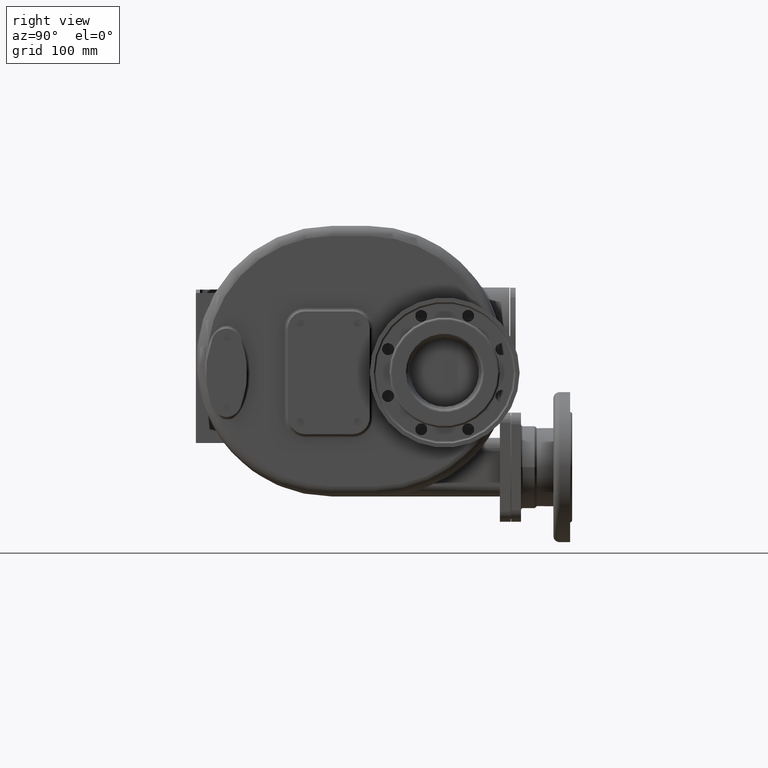
[diagram: clean part render]
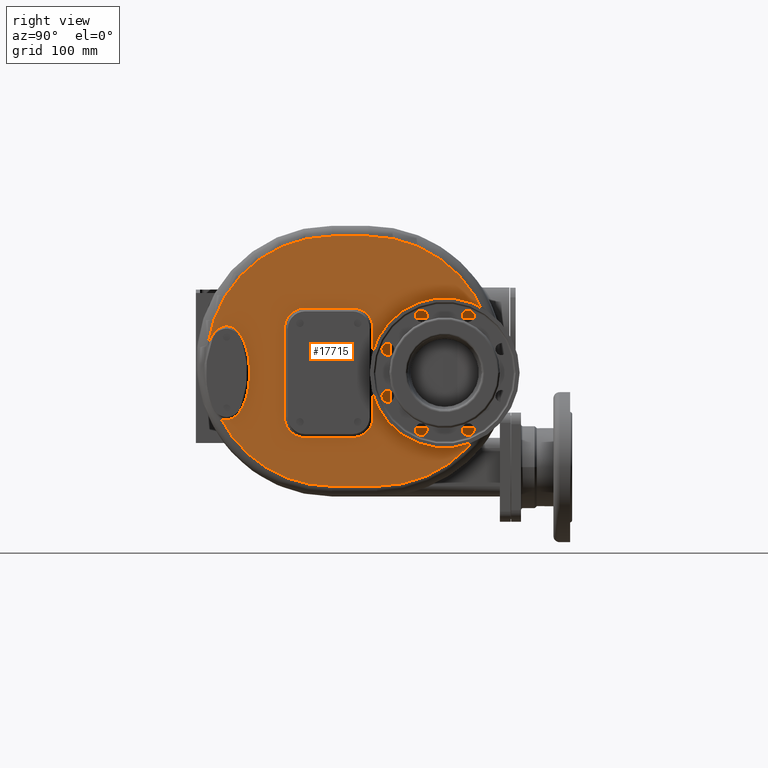
[diagram: same view with one face highlighted and labeled with its STEP entity id]
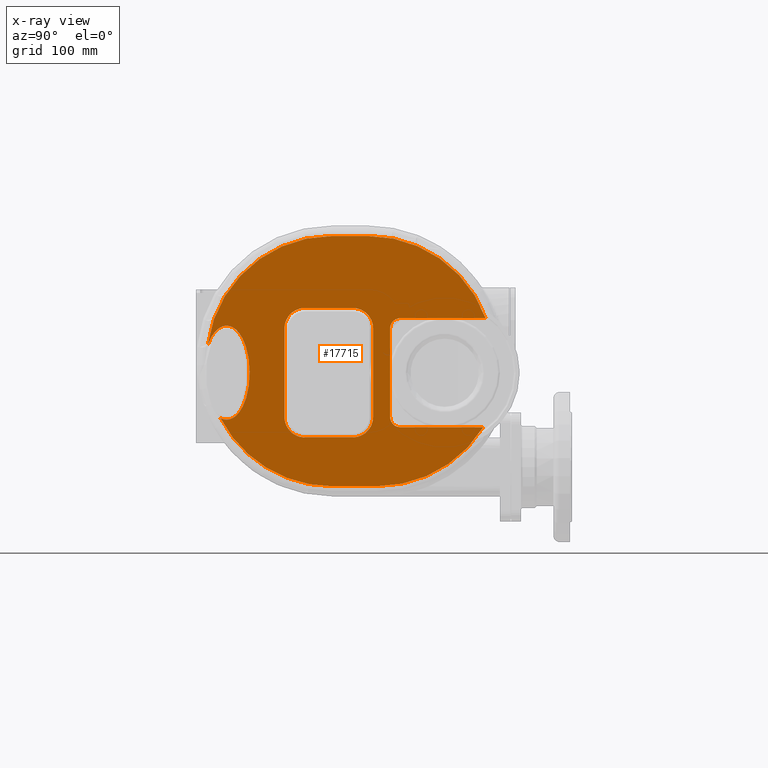
[diagram: x-ray of the same camera — body ghosted, the highlighted face saturated]
A machine part, right view. The second image highlights one B-rep face of the part: STEP entity #17715.
The next image is the same camera in x-ray: the body ghosted, the highlighted face saturated — about 0% of this face is hidden behind the body in this view.
In plain terms, the highlighted planar face has unit normal (-1, 0, 0).
Its self-contained STEP definition (entity closure, byte-faithful):
#3125=DIRECTION('',(0.E0,1.E0,0.E0));
#3126=VECTOR('',#3125,1.216074309109E2);
#3127=CARTESIAN_POINT('',(1.85E2,3.E2,-9.7E1));
#3128=LINE('',#3127,#3126);
#3169=CARTESIAN_POINT('',(1.85E2,3.E2,-8.2E1));
#3170=DIRECTION('',(-1.E0,0.E0,0.E0));
#3171=DIRECTION('',(0.E0,0.E0,-1.E0));
#3172=AXIS2_PLACEMENT_3D('',#3169,#3170,#3171);
#3174=CARTESIAN_POINT('',(1.850000005377E2,3.625590009268E1,-8.380700360577E1));
#3175=CARTESIAN_POINT('',(1.850000010474E2,3.644233185227E1,-8.390271979171E1));
#3176=CARTESIAN_POINT('',(1.849999995139E2,3.681483443033E1,-8.408726570567E1));
#3177=CARTESIAN_POINT('',(1.850000001302E2,3.737236600912E1,-8.434382731485E1));
#3178=CARTESIAN_POINT('',(1.849999999651E2,3.792832459514E1,-8.458042790233E1));
#3179=CARTESIAN_POINT('',(1.850000000094E2,3.848249259829E1,-8.479738974309E1));
#3180=CARTESIAN_POINT('',(1.849999999974E2,3.903461455280E1,-8.499507185047E1));
#3181=CARTESIAN_POINT('',(1.850000000009E2,3.958443812879E1,-8.517385338332E1));
#3182=CARTESIAN_POINT('',(1.849999999989E2,4.013180420925E1,-8.533409415977E1));
#3183=CARTESIAN_POINT('',(1.850000000034E2,4.067731638974E1,-8.547632499711E1));
#3184=CARTESIAN_POINT('',(1.849999999877E2,4.122150457814E1,-8.560105536925E1));
#3185=CARTESIAN_POINT('',(1.850000000460E2,4.176510983590E1,-8.570868341523E1));
#3186=CARTESIAN_POINT('',(1.849999998283E2,4.230805306893E1,-8.579930381958E1));
#3187=CARTESIAN_POINT('',(1.850000006406E2,4.284993283136E1,-8.587303444513E1));
#3188=CARTESIAN_POINT('',(1.849999976092E2,4.339042353394E1,-8.593007338048E1));
#3189=CARTESIAN_POINT('',(1.850000089227E2,4.392919762085E1,-8.597058278401E1));
#3190=CARTESIAN_POINT('',(1.849999666999E2,4.446599704520E1,-8.599466012178E1));
#3191=CARTESIAN_POINT('',(1.850000717517E2,4.482225118187E1,-8.599999905024E1));
#3192=CARTESIAN_POINT('',(1.850000711929E2,4.499999992839E1,-8.599999999620E1));
#3194=CARTESIAN_POINT('',(1.850000711929E2,4.499999992839E1,-8.599999999620E1));
#3195=CARTESIAN_POINT('',(1.850001252122E2,4.518950684331E1,-8.599989870260E1));
#3196=CARTESIAN_POINT('',(1.849999418888E2,4.556946980294E1,-8.599322555239E1));
#3197=CARTESIAN_POINT('',(1.850000155708E2,4.614285532402E1,-8.596554469983E1));
#3198=CARTESIAN_POINT('',(1.849999958278E2,4.671790287241E1,-8.591921490160E1));
#3199=CARTESIAN_POINT('',(1.850000011179E2,4.729342825618E1,-8.585447501856E1));
#3200=CARTESIAN_POINT('',(1.849999997004E2,4.786819630356E1,-8.577130638975E1));
#3201=CARTESIAN_POINT('',(1.850000000803E2,4.844056075272E1,-8.566993653368E1));
#3202=CARTESIAN_POINT('',(1.849999999785E2,4.901154720405E1,-8.555009547117E1));
#3203=CARTESIAN_POINT('',(1.850000000058E2,4.958341881687E1,-8.541092378018E1));
#3204=CARTESIAN_POINT('',(1.849999999985E2,5.015822642245E1,-8.525168364917E1));
#3205=CARTESIAN_POINT('',(1.850000000004E2,5.073614453723E1,-8.507193670991E1));
#3206=CARTESIAN_POINT('',(1.849999999999E2,5.131729604752E1,-8.487119471345E1));
#3207=CARTESIAN_POINT('',(1.85E2,5.190171732239E1,-8.464891730547E1));
#3208=CARTESIAN_POINT('',(1.85E2,5.248934587449E1,-8.440452518904E1));
#3209=CARTESIAN_POINT('',(1.85E2,5.307995156450E1,-8.413744288156E1));
#3210=CARTESIAN_POINT('',(1.85E2,5.367325762158E1,-8.384703677398E1));
#3211=CARTESIAN_POINT('',(1.85E2,5.426876653845E1,-8.353276263190E1));
#3212=CARTESIAN_POINT('',(1.85E2,5.486700629484E1,-8.319367839178E1));
#3213=CARTESIAN_POINT('',(1.85E2,5.546920099925E1,-8.282824995882E1));
#3214=CARTESIAN_POINT('',(1.85E2,5.607631298691E1,-8.243486265218E1));
#3215=CARTESIAN_POINT('',(1.85E2,5.668876844080E1,-8.201204680469E1));
#3216=CARTESIAN_POINT('',(1.85E2,5.730606315073E1,-8.155888062092E1));
#3217=CARTESIAN_POINT('',(1.85E2,5.792760292688E1,-8.107452987500E1));
#3218=CARTESIAN_POINT('',(1.85E2,5.855335905495E1,-8.055758564383E1));
#3219=CARTESIAN_POINT('',(1.85E2,5.918397150765E1,-8.000596171991E1));
#3220=CARTESIAN_POINT('',(1.85E2,5.981972614713E1,-7.941770282844E1));
#3221=CARTESIAN_POINT('',(1.85E2,6.046065919755E1,-7.879100216395E1));
#3222=CARTESIAN_POINT('',(1.85E2,6.110666118275E1,-7.812406059830E1));
#3223=CARTESIAN_POINT('',(1.85E2,6.175767607498E1,-7.741461600119E1));
#3224=CARTESIAN_POINT('',(1.85E2,6.241353893448E1,-7.666046138290E1));
#3225=CARTESIAN_POINT('',(1.85E2,6.307392394965E1,-7.585961432962E1));
#3226=CARTESIAN_POINT('',(1.85E2,6.373847933698E1,-7.500974785608E1));
#3227=CARTESIAN_POINT('',(1.85E2,6.440694003495E1,-7.410809943113E1));
#3228=CARTESIAN_POINT('',(1.85E2,6.507891382813E1,-7.315217800947E1));
#3229=CARTESIAN_POINT('',(1.85E2,6.575381821424E1,-7.213940442307E1));
#3230=CARTESIAN_POINT('',(1.85E2,6.643084945217E1,-7.106700698512E1));
#3231=CARTESIAN_POINT('',(1.85E2,6.710919631253E1,-6.993251973891E1));
#3232=CARTESIAN_POINT('',(1.85E2,6.778781744856E1,-6.873333426582E1));
#3233=CARTESIAN_POINT('',(1.85E2,6.846552408881E1,-6.746676728806E1));
#3234=CARTESIAN_POINT('',(1.85E2,6.914112449358E1,-6.613040379644E1));
#3235=CARTESIAN_POINT('',(1.85E2,6.981299159798E1,-6.472181303130E1));
#3236=CARTESIAN_POINT('',(1.85E2,7.047960206289E1,-6.323881832511E1));
#3237=CARTESIAN_POINT('',(1.85E2,7.113901559639E1,-6.167942909323E1));
#3238=CARTESIAN_POINT('',(1.85E2,7.178934349214E1,-6.004185513991E1));
#3239=CARTESIAN_POINT('',(1.85E2,7.242830233693E1,-5.832477658584E1));
#3240=CARTESIAN_POINT('',(1.85E2,7.305364066987E1,-5.652714015464E1));
#3241=CARTESIAN_POINT('',(1.85E2,7.366275183164E1,-5.464849392524E1));
#3242=CARTESIAN_POINT('',(1.85E2,7.425312341134E1,-5.268866940943E1));
#3243=CARTESIAN_POINT('',(1.85E2,7.482187926457E1,-5.064830980052E1));
#3244=CARTESIAN_POINT('',(1.85E2,7.536633102629E1,-4.852833233359E1));
#3245=CARTESIAN_POINT('',(1.85E2,7.588342740316E1,-4.633073034330E1));
#3246=CARTESIAN_POINT('',(1.85E2,7.637040060691E1,-4.405772228374E1));
#3247=CARTESIAN_POINT('',(1.85E2,7.682419360171E1,-4.171279891077E1));
#3248=CARTESIAN_POINT('',(1.85E2,7.724207719205E1,-3.929961601283E1));
#3249=CARTESIAN_POINT('',(1.85E2,7.762121705471E1,-3.682316573896E1));
#3250=CARTESIAN_POINT('',(1.85E2,7.795902742657E1,-3.428871071122E1));
#3251=CARTESIAN_POINT('',(1.85E2,7.825316915739E1,-3.170247622063E1));
#3252=CARTESIAN_POINT('',(1.85E2,7.850134511008E1,-2.907135330018E1));
#3253=CARTESIAN_POINT('',(1.85E2,7.870187448035E1,-2.640248987455E1));
#3254=CARTESIAN_POINT('',(1.85E2,7.885304046993E1,-2.370409072312E1));
#3255=CARTESIAN_POINT('',(1.85E2,7.895375342613E1,-2.098425461856E1));
#3256=CARTESIAN_POINT('',(1.85E2,7.900324092879E1,-1.825168290558E1));
#3257=CARTESIAN_POINT('',(1.85E2,7.900098781827E1,-1.551523666799E1));
#3258=CARTESIAN_POINT('',(1.85E2,7.894719500861E1,-1.278374435512E1));
#3259=CARTESIAN_POINT('',(1.85E2,7.884216264602E1,-1.006591450731E1));
#3260=CARTESIAN_POINT('',(1.85E2,7.868676166932E1,-7.370535469734E0));
#3261=CARTESIAN_POINT('',(1.85E2,7.848232314442E1,-4.705716672129E0));
#3262=CARTESIAN_POINT('',(1.85E2,7.823023659222E1,-2.079207344545E0));
#3263=CARTESIAN_POINT('',(1.85E2,7.793259805944E1,5.013647148972E-1));
#3264=CARTESIAN_POINT('',(1.85E2,7.759147194115E1,3.029710909365E0));
#3265=CARTESIAN_POINT('',(1.85E2,7.720928791931E1,5.499405603073E0));
#3266=CARTESIAN_POINT('',(1.85E2,7.678876281844E1,7.905282605819E0));
#3267=CARTESIAN_POINT('',(1.85E2,7.633249191919E1,1.024269332079E1));
#3268=CARTESIAN_POINT('',(1.85E2,7.584353498817E1,1.250762699480E1));
#3269=CARTESIAN_POINT('',(1.85E2,7.532460537244E1,1.469717380367E1));
#3270=CARTESIAN_POINT('',(1.85E2,7.477880358759E1,1.680869239518E1));
#3271=CARTESIAN_POINT('',(1.85E2,7.420886448877E1,1.884072404745E1));
#3272=CARTESIAN_POINT('',(1.85E2,7.361774827512E1,2.079201015275E1));
#3273=CARTESIAN_POINT('',(1.85E2,7.300807439108E1,2.266228769933E1));
#3274=CARTESIAN_POINT('',(1.85E2,7.238256612715E1,2.445151260150E1));
#3275=CARTESIAN_POINT('',(1.85E2,7.174360569278E1,2.616041002525E1));
#3276=CARTESIAN_POINT('',(1.85E2,7.109361378832E1,2.778992212320E1));
#3277=CARTESIAN_POINT('',(1.85E2,7.043467186250E1,2.934152890162E1));
#3278=CARTESIAN_POINT('',(1.85E2,6.976885832766E1,3.081689665170E1));
#3279=CARTESIAN_POINT('',(1.85E2,6.909792427296E1,3.221809702129E1));
#3280=CARTESIAN_POINT('',(1.85E2,6.842354274433E1,3.354729396418E1));
#3281=CARTESIAN_POINT('',(1.85E2,6.774721054479E1,3.480693316483E1));
#3282=CARTESIAN_POINT('',(1.85E2,6.707015733650E1,3.599941680132E1));
#3283=CARTESIAN_POINT('',(1.85E2,6.639364343639E1,3.712746266736E1));
#3284=CARTESIAN_POINT('',(1.85E2,6.571853002673E1,3.819364170201E1));
#3285=CARTESIAN_POINT('',(1.85E2,6.504561792590E1,3.920068128407E1));
#3286=CARTESIAN_POINT('',(1.85E2,6.437568578852E1,4.015133665570E1));
#3287=CARTESIAN_POINT('',(1.85E2,6.370916111379E1,4.104814521698E1));
#3288=CARTESIAN_POINT('',(1.85E2,6.304638184767E1,4.189380253273E1));
#3289=CARTESIAN_POINT('',(1.85E2,6.238783783456E1,4.269077678348E1));
#3290=CARTESIAN_POINT('',(1.85E2,6.173375724101E1,4.344131690342E1));
#3291=CARTESIAN_POINT('',(1.85E2,6.108421512661E1,4.414777606723E1));
#3292=CARTESIAN_POINT('',(1.85E2,6.043944642871E1,4.481230613829E1));
#3293=CARTESIAN_POINT('',(1.85E2,5.979954639988E1,4.543685539750E1));
#3294=CARTESIAN_POINT('',(1.85E2,5.916442836045E1,4.602341481491E1));
#3295=CARTESIAN_POINT('',(1.85E2,5.853413008023E1,4.657381022052E1));
#3296=CARTESIAN_POINT('',(1.85E2,5.790862846089E1,4.708970054215E1));
#3297=CARTESIAN_POINT('',(1.85E2,5.728772460407E1,4.757274691636E1));
#3298=CARTESIAN_POINT('',(1.85E2,5.667133613891E1,4.802443759764E1));
#3299=CARTESIAN_POINT('',(1.85E2,5.605936994374E1,4.844613912642E1));
#3300=CARTESIAN_POINT('',(1.85E2,5.545158233253E1,4.883919578085E1));
#3301=CARTESIAN_POINT('',(1.85E2,5.484785081526E1,4.920476920419E1));
#3302=CARTESIAN_POINT('',(1.85E2,5.424805552540E1,4.954395436310E1));
#3303=CARTESIAN_POINT('',(1.85E2,5.365196738629E1,4.985780495307E1));
#3304=CARTESIAN_POINT('',(1.85E2,5.305931618534E1,5.014728002577E1));
#3305=CARTESIAN_POINT('',(1.85E2,5.246979983289E1,5.041331324403E1));
#3306=CARTESIAN_POINT('',(1.85E2,5.188309189676E1,5.065672244706E1));
#3307=CARTESIAN_POINT('',(1.849999999999E2,5.129915568915E1,5.087809952217E1));
#3308=CARTESIAN_POINT('',(1.850000000002E2,5.071795471106E1,5.107808157176E1));
#3309=CARTESIAN_POINT('',(1.849999999991E2,5.013934085642E1,5.125725583326E1));
#3310=CARTESIAN_POINT('',(1.850000000033E2,4.956272474974E1,5.141620161068E1));
#3311=CARTESIAN_POINT('',(1.849999999875E2,4.898758472486E1,5.155547560170E1));
#3312=CARTESIAN_POINT('',(1.850000000466E2,4.841323091236E1,5.167556339485E1));
#3313=CARTESIAN_POINT('',(1.849999998262E2,4.783983670476E1,5.177660684976E1));
#3314=CARTESIAN_POINT('',(1.850000006485E2,4.726778398452E1,5.185873901405E1));
#3315=CARTESIAN_POINT('',(1.849999975798E2,4.669741570136E1,5.192222837044E1));
#3316=CARTESIAN_POINT('',(1.850000090325E2,4.612906037439E1,5.196729468082E1));
#3317=CARTESIAN_POINT('',(1.849999662903E2,4.556296935055E1,5.199407075726E1));
#3318=CARTESIAN_POINT('',(1.850000726344E2,4.518737295131E1,5.199999891831E1));
#3319=CARTESIAN_POINT('',(1.850000719978E2,4.500000007358E1,5.199999999610E1));
#3321=CARTESIAN_POINT('',(1.850000719978E2,4.500000007358E1,5.199999999610E1));
#3322=CARTESIAN_POINT('',(1.850001267406E2,4.481104877648E1,5.199989710667E1));
#3323=CARTESIAN_POINT('',(1.849999411795E2,4.443209167657E1,5.199324911120E1));
#3324=CARTESIAN_POINT('',(1.850000157609E2,4.385983143286E1,5.196568575622E1));
#3325=CARTESIAN_POINT('',(1.849999957769E2,4.328572785387E1,5.191952317161E1));
#3326=CARTESIAN_POINT('',(1.850000011316E2,4.271109534493E1,5.185500713247E1));
#3327=CARTESIAN_POINT('',(1.849999996968E2,4.213731854506E1,5.177213984082E1));
#3328=CARTESIAN_POINT('',(1.850000000812E2,4.156618035811E1,5.167119011036E1));
#3329=CARTESIAN_POINT('',(1.849999999782E2,4.099647119165E1,5.155188139042E1));
#3330=CARTESIAN_POINT('',(1.850000000058E2,4.042593302348E1,5.141334805671E1));
#3331=CARTESIAN_POINT('',(1.849999999984E2,3.985262508561E1,5.125487010647E1));
#3332=CARTESIAN_POINT('',(1.850000000004E2,3.927632647611E1,5.107602296878E1));
#3333=CARTESIAN_POINT('',(1.849999999999E2,3.869678735023E1,5.087628877304E1));
#3334=CARTESIAN_POINT('',(1.85E2,3.811385592961E1,5.065508802725E1));
#3335=CARTESIAN_POINT('',(1.85E2,3.752754232303E1,5.041181312395E1));
#3336=CARTESIAN_POINT('',(1.85E2,3.693820782815E1,5.014593994828E1));
#3337=CARTESIAN_POINT('',(1.85E2,3.634620210372E1,4.985688601010E1));
#3338=CARTESIAN_POINT('',(1.85E2,3.575217335100E1,4.954418577109E1));
#3339=CARTESIAN_POINT('',(1.85E2,3.515538192979E1,4.920678767335E1));
#3340=CARTESIAN_POINT('',(1.85E2,3.455459162316E1,4.884315301035E1));
#3341=CARTESIAN_POINT('',(1.85E2,3.394876887882E1,4.845161880231E1));
#3342=CARTESIAN_POINT('',(1.85E2,3.333765505204E1,4.803082767401E1));
#3343=CARTESIAN_POINT('',(1.85E2,3.272176433756E1,4.757988051193E1));
#3344=CARTESIAN_POINT('',(1.85E2,3.210171542287E1,4.709799173881E1));
#3345=CARTESIAN_POINT('',(1.85E2,3.147741630684E1,4.658368658378E1));
#3346=CARTESIAN_POINT('',(1.85E2,3.084834757465E1,4.603497749444E1));
#3347=CARTESIAN_POINT('',(1.85E2,3.021427767288E1,4.544998579026E1));
#3348=CARTESIAN_POINT('',(1.85E2,2.957503325135E1,4.482678086557E1));
#3349=CARTESIAN_POINT('',(1.85E2,2.893059157455E1,4.416347971534E1));
#3350=CARTESIAN_POINT('',(1.85E2,2.828109530975E1,4.345792199950E1));
#3351=CARTESIAN_POINT('',(1.85E2,2.76268049E1,4.270800238143E1));
#3352=CARTESIAN_POINT('',(1.85E2,2.696814925223E1,4.191186811357E1));
#3353=CARTESIAN_POINT('',(1.85E2,2.630540192496E1,4.106723291169E1));
#3354=CARTESIAN_POINT('',(1.85E2,2.563881894602E1,4.017133731290E1));
#3355=CARTESIAN_POINT('',(1.849999999998E2,2.496879187446E1,3.922167441618E1));
#3356=CARTESIAN_POINT('',(1.850000000006E2,2.429586468350E1,3.821577892319E1));
#3357=CARTESIAN_POINT('',(1.849999999978E2,2.362088801954E1,3.715098452631E1));
#3358=CARTESIAN_POINT('',(1.850000000083E2,2.294474268941E1,3.602493122796E1));
#3359=CARTESIAN_POINT('',(1.849999999692E2,2.226832437395E1,3.483503023584E1));
#3360=CARTESIAN_POINT('',(1.850000001151E2,2.159273995515E1,3.357841062375E1));
#3361=CARTESIAN_POINT('',(1.849999995706E2,2.091912409746E1,3.225263469886E1));
#3362=CARTESIAN_POINT('',(1.850000016025E2,2.024922447930E1,3.085567739919E1));
#3363=CARTESIAN_POINT('',(1.849999940194E2,1.958472336326E1,2.938571740279E1));
#3364=CARTESIAN_POINT('',(1.850000223200E2,1.892733010295E1,2.784062397819E1));
#3365=CARTESIAN_POINT('',(1.849999167007E2,1.827888125732E1,2.621846207342E1));
#3366=CARTESIAN_POINT('',(1.850001794850E2,1.785375017846E1,2.508413205959E1));
#3367=CARTESIAN_POINT('',(1.850001806549E2,1.764340803706E1,2.450367455748E1));
#3369=CARTESIAN_POINT('',(1.85E2,1.995E2,0.E0));
#3370=DIRECTION('',(1.E0,0.E0,0.E0));
#3371=DIRECTION('',(0.E0,0.E0,1.E0));
#3372=AXIS2_PLACEMENT_3D('',#3369,#3370,#3371);
#3374=DIRECTION('',(0.E0,-1.E0,0.E0));
#3375=VECTOR('',#3374,5.338915899923E1);
#3376=CARTESIAN_POINT('',(1.85E2,2.528891589992E2,1.835E2));
#3377=LINE('',#3376,#3375);
#3378=CARTESIAN_POINT('',(1.85E2,2.528891589992E2,0.E0));
#3379=DIRECTION('',(1.E0,0.E0,0.E0));
#3380=DIRECTION('',(0.E0,9.392169392074E-1,3.433242506812E-1));
#3381=AXIS2_PLACEMENT_3D('',#3378,#3379,#3380);
#3383=CARTESIAN_POINT('',(1.85E2,2.658407785106E2,0.E0));
#3384=DIRECTION('',(1.E0,0.E0,0.E0));
#3385=DIRECTION('',(0.E0,0.E0,-1.E0));
#3386=AXIS2_PLACEMENT_3D('',#3383,#3384,#3385);
#3388=DIRECTION('',(0.E0,1.E0,0.E0));
#3389=VECTOR('',#3388,6.634077851062E1);
#3390=CARTESIAN_POINT('',(1.85E2,1.995E2,-1.835E2));
#3391=LINE('',#3390,#3389);
#3392=CARTESIAN_POINT('',(1.85E2,1.995E2,0.E0));
#3393=DIRECTION('',(1.E0,0.E0,0.E0));
#3394=DIRECTION('',(0.E0,-8.896136235749E-1,-4.567139156517E-1));
#3395=AXIS2_PLACEMENT_3D('',#3392,#3393,#3394);
#3397=DIRECTION('',(0.E0,4.788839410549E-12,1.E0));
#3398=VECTOR('',#3397,1.299999999984E2);
#3399=CARTESIAN_POINT('',(1.85E2,2.599999999989E2,-8.199999999904E1));
#3400=LINE('',#3399,#3398);
#3401=CARTESIAN_POINT('',(1.85E2,2.3E2,4.8E1));
#3402=DIRECTION('',(1.E0,0.E0,0.E0));
#3403=DIRECTION('',(0.E0,1.E0,0.E0));
#3404=AXIS2_PLACEMENT_3D('',#3401,#3402,#3403);
#3406=DIRECTION('',(0.E0,-1.E0,8.894167942032E-12));
#3407=VECTOR('',#3406,6.999999999837E1);
#3408=CARTESIAN_POINT('',(1.85E2,2.299999999990E2,7.799999999892E1));
#3409=LINE('',#3408,#3407);
#3410=CARTESIAN_POINT('',(1.85E2,1.6E2,4.8E1));
#3411=DIRECTION('',(1.E0,0.E0,0.E0));
#3412=DIRECTION('',(0.E0,0.E0,1.E0));
#3413=AXIS2_PLACEMENT_3D('',#3410,#3411,#3412);
#3415=DIRECTION('',(0.E0,-4.789058039083E-12,-1.E0));
#3416=VECTOR('',#3415,1.299999999984E2);
#3417=CARTESIAN_POINT('',(1.85E2,1.300000000011E2,4.799999999904E1));
#3418=LINE('',#3417,#3416);
#3419=CARTESIAN_POINT('',(1.85E2,1.6E2,-8.2E1));
#3420=DIRECTION('',(1.E0,0.E0,0.E0));
#3421=DIRECTION('',(0.E0,-1.E0,0.E0));
#3422=AXIS2_PLACEMENT_3D('',#3419,#3420,#3421);
#3424=DIRECTION('',(0.E0,1.E0,-8.894167942032E-12));
#3425=VECTOR('',#3424,6.999999999837E1);
#3426=CARTESIAN_POINT('',(1.85E2,1.600000000010E2,-1.119999999989E2));
#3427=LINE('',#3426,#3425);
#3428=CARTESIAN_POINT('',(1.85E2,2.3E2,-8.2E1));
#3429=DIRECTION('',(1.E0,0.E0,0.E0));
#3430=DIRECTION('',(0.E0,0.E0,-1.E0));
#3431=AXIS2_PLACEMENT_3D('',#3428,#3429,#3430);
#3476=CARTESIAN_POINT('',(1.850001806549E2,1.764340803706E1,2.450367455748E1));
#5367=DIRECTION('',(0.E0,-1.E0,0.E0));
#5368=VECTOR('',#5367,1.252354673438E2);
#5369=CARTESIAN_POINT('',(1.85E2,4.252354673438E2,6.3E1));
#5370=LINE('',#5369,#5368);
#5415=DIRECTION('',(0.E0,0.E0,-1.E0));
#5416=VECTOR('',#5415,1.3E2);
#5417=CARTESIAN_POINT('',(1.85E2,2.85E2,4.8E1));
#5418=LINE('',#5417,#5416);
#5423=CARTESIAN_POINT('',(1.85E2,3.E2,4.8E1));
#5424=DIRECTION('',(-1.E0,0.E0,0.E0));
#5425=DIRECTION('',(0.E0,-1.E0,0.E0));
#5426=AXIS2_PLACEMENT_3D('',#5423,#5424,#5425);
#11776=CARTESIAN_POINT('',(1.85E2,2.85E2,4.8E1));
#11777=CARTESIAN_POINT('',(1.85E2,2.85E2,-8.2E1));
#11778=VERTEX_POINT('',#11776);
#11779=VERTEX_POINT('',#11777);
#11780=CARTESIAN_POINT('',(1.85E2,3.E2,-9.7E1));
#11781=VERTEX_POINT('',#11780);
#11782=CARTESIAN_POINT('',(1.85E2,3.E2,6.3E1));
#11783=VERTEX_POINT('',#11782);
#11788=CARTESIAN_POINT('',(1.85E2,2.658407785106E2,-1.835E2));
#11789=CARTESIAN_POINT('',(1.85E2,4.216074309109E2,-9.7E1));
#11790=VERTEX_POINT('',#11788);
#11791=VERTEX_POINT('',#11789);
#11792=CARTESIAN_POINT('',(1.85E2,1.995E2,-1.835E2));
#11793=VERTEX_POINT('',#11792);
#11798=CARTESIAN_POINT('',(1.85E2,2.528891589992E2,1.835E2));
#11799=CARTESIAN_POINT('',(1.85E2,1.995E2,1.835E2));
#11800=VERTEX_POINT('',#11798);
#11801=VERTEX_POINT('',#11799);
#11804=CARTESIAN_POINT('',(1.85E2,4.252354673438E2,6.3E1));
#11805=VERTEX_POINT('',#11804);
#11864=VERTEX_POINT('',#3174);
#11865=VERTEX_POINT('',#3192);
#11867=VERTEX_POINT('',#3319);
#11868=VERTEX_POINT('',#3476);
#11875=CARTESIAN_POINT('',(1.85E2,2.599999999989E2,-8.199999999904E1));
#11876=CARTESIAN_POINT('',(1.85E2,2.599999999995E2,4.799999999933E1));
#11877=VERTEX_POINT('',#11875);
#11878=VERTEX_POINT('',#11876);
#11879=CARTESIAN_POINT('',(1.85E2,2.3E2,7.8E1));
#11880=VERTEX_POINT('',#11879);
#11883=CARTESIAN_POINT('',(1.85E2,1.600000000007E2,7.799999999954E1));
#11884=VERTEX_POINT('',#11883);
#11887=CARTESIAN_POINT('',(1.85E2,1.3E2,4.8E1));
#11888=VERTEX_POINT('',#11887);
#11891=CARTESIAN_POINT('',(1.85E2,1.300000000005E2,-8.199999999933E1));
#11892=VERTEX_POINT('',#11891);
#11895=CARTESIAN_POINT('',(1.85E2,2.3E2,-1.12E2));
#11896=VERTEX_POINT('',#11895);
#11899=CARTESIAN_POINT('',(1.85E2,1.600000000010E2,-1.119999999989E2));
#11900=VERTEX_POINT('',#11899);
#17664=CARTESIAN_POINT('',(1.85E2,2.E2,0.E0));
#17665=DIRECTION('',(-1.E0,0.E0,0.E0));
#17666=DIRECTION('',(0.E0,0.E0,1.E0));
#17667=AXIS2_PLACEMENT_3D('',#17664,#17665,#17666);
#17668=PLANE('',#17667);
#17670=ORIENTED_EDGE('',*,*,#17669,.T.);
#17672=ORIENTED_EDGE('',*,*,#17671,.T.);
#17674=ORIENTED_EDGE('',*,*,#17673,.T.);
#17676=ORIENTED_EDGE('',*,*,#17675,.F.);
#17678=ORIENTED_EDGE('',*,*,#17677,.F.);
#17680=ORIENTED_EDGE('',*,*,#17679,.F.);
#17682=ORIENTED_EDGE('',*,*,#17681,.T.);
#17684=ORIENTED_EDGE('',*,*,#17683,.F.);
#17686=ORIENTED_EDGE('',*,*,#17685,.T.);
#17687=ORIENTED_EDGE('',*,*,#17655,.F.);
#17688=ORIENTED_EDGE('',*,*,#17622,.T.);
#17690=ORIENTED_EDGE('',*,*,#17689,.F.);
#17692=ORIENTED_EDGE('',*,*,#17691,.F.);
#17694=ORIENTED_EDGE('',*,*,#17693,.F.);
#17695=EDGE_LOOP('',(#17670,#17672,#17674,#17676,#17678,#17680,#17682,#17684,
#17686,#17687,#17688,#17690,#17692,#17694));
#17696=FACE_OUTER_BOUND('',#17695,.F.);
#17698=ORIENTED_EDGE('',*,*,#17697,.T.);
#17700=ORIENTED_EDGE('',*,*,#17699,.T.);
#17702=ORIENTED_EDGE('',*,*,#17701,.T.);
#17704=ORIENTED_EDGE('',*,*,#17703,.T.);
#17706=ORIENTED_EDGE('',*,*,#17705,.T.);
#17708=ORIENTED_EDGE('',*,*,#17707,.T.);
#17710=ORIENTED_EDGE('',*,*,#17709,.T.);
#17712=ORIENTED_EDGE('',*,*,#17711,.T.);
#17713=EDGE_LOOP('',(#17698,#17700,#17702,#17704,#17706,#17708,#17710,#17712));
#17714=FACE_BOUND('',#17713,.F.);
#17715=ADVANCED_FACE('',(#17696,#17714),#17668,.F.);
#3173=CIRCLE('',#3172,1.5E1);
#3193=B_SPLINE_CURVE_WITH_KNOTS('',3,(#3174,#3175,#3176,#3177,#3178,#3179,#3180,
#3181,#3182,#3183,#3184,#3185,#3186,#3187,#3188,#3189,#3190,#3191,#3192),
.UNSPECIFIED.,.F.,.F.,(4,1,1,1,1,1,1,1,1,1,1,1,1,1,1,1,4),(0.E0,6.25E-2,1.25E-1,
1.875E-1,2.5E-1,3.125E-1,3.75E-1,4.375E-1,5.E-1,5.625E-1,6.25E-1,6.875E-1,
7.5E-1,8.125E-1,8.75E-1,9.375E-1,1.E0),.UNSPECIFIED.);
#3320=B_SPLINE_CURVE_WITH_KNOTS('',3,(#3194,#3195,#3196,#3197,#3198,#3199,#3200,
#3201,#3202,#3203,#3204,#3205,#3206,#3207,#3208,#3209,#3210,#3211,#3212,#3213,
#3214,#3215,#3216,#3217,#3218,#3219,#3220,#3221,#3222,#3223,#3224,#3225,#3226,
#3227,#3228,#3229,#3230,#3231,#3232,#3233,#3234,#3235,#3236,#3237,#3238,#3239,
#3240,#3241,#3242,#3243,#3244,#3245,#3246,#3247,#3248,#3249,#3250,#3251,#3252,
#3253,#3254,#3255,#3256,#3257,#3258,#3259,#3260,#3261,#3262,#3263,#3264,#3265,
#3266,#3267,#3268,#3269,#3270,#3271,#3272,#3273,#3274,#3275,#3276,#3277,#3278,
#3279,#3280,#3281,#3282,#3283,#3284,#3285,#3286,#3287,#3288,#3289,#3290,#3291,
#3292,#3293,#3294,#3295,#3296,#3297,#3298,#3299,#3300,#3301,#3302,#3303,#3304,
#3305,#3306,#3307,#3308,#3309,#3310,#3311,#3312,#3313,#3314,#3315,#3316,#3317,
#3318,#3319),.UNSPECIFIED.,.F.,.F.,(4,1,1,1,1,1,1,1,1,1,1,1,1,1,1,1,1,1,1,1,1,1,
1,1,1,1,1,1,1,1,1,1,1,1,1,1,1,1,1,1,1,1,1,1,1,1,1,1,1,1,1,1,1,1,1,1,1,1,1,1,1,1,
1,1,1,1,1,1,1,1,1,1,1,1,1,1,1,1,1,1,1,1,1,1,1,1,1,1,1,1,1,1,1,1,1,1,1,1,1,1,1,1,
1,1,1,1,1,1,1,1,1,1,1,1,1,1,1,1,1,1,1,1,1,4),(0.E0,8.130081300813E-3,
1.626016260163E-2,2.439024390244E-2,3.252032520325E-2,4.065040650407E-2,
4.878048780488E-2,5.691056910569E-2,6.504065040650E-2,7.317073170732E-2,
8.130081300813E-2,8.943089430894E-2,9.756097560976E-2,1.056910569106E-1,
1.138211382114E-1,1.219512195122E-1,1.300813008130E-1,1.382113821138E-1,
1.463414634146E-1,1.544715447154E-1,1.626016260163E-1,1.707317073171E-1,
1.788617886179E-1,1.869918699187E-1,1.951219512195E-1,2.032520325203E-1,
2.113821138211E-1,2.195121951220E-1,2.276422764228E-1,2.357723577236E-1,
2.439024390244E-1,2.520325203252E-1,2.601626016260E-1,2.682926829268E-1,
2.764227642276E-1,2.845528455285E-1,2.926829268293E-1,3.008130081301E-1,
3.089430894309E-1,3.170731707317E-1,3.252032520325E-1,3.333333333333E-1,
3.414634146341E-1,3.495934959350E-1,3.577235772358E-1,3.658536585366E-1,
3.739837398374E-1,3.821138211382E-1,3.902439024390E-1,3.983739837398E-1,
4.065040650407E-1,4.146341463415E-1,4.227642276423E-1,4.308943089431E-1,
4.390243902439E-1,4.471544715447E-1,4.552845528455E-1,4.634146341463E-1,
4.715447154472E-1,4.796747967480E-1,4.878048780488E-1,4.959349593496E-1,
5.040650406504E-1,5.121951219512E-1,5.203252032520E-1,5.284552845528E-1,
5.365853658537E-1,5.447154471545E-1,5.528455284553E-1,5.609756097561E-1,
5.691056910569E-1,5.772357723577E-1,5.853658536585E-1,5.934959349593E-1,
6.016260162602E-1,6.097560975610E-1,6.178861788618E-1,6.260162601626E-1,
6.341463414634E-1,6.422764227642E-1,6.504065040650E-1,6.585365853659E-1,
6.666666666667E-1,6.747967479675E-1,6.829268292683E-1,6.910569105691E-1,
6.991869918699E-1,7.073170731707E-1,7.154471544715E-1,7.235772357724E-1,
7.317073170732E-1,7.398373983740E-1,7.479674796748E-1,7.560975609756E-1,
7.642276422764E-1,7.723577235772E-1,7.804878048780E-1,7.886178861789E-1,
7.967479674797E-1,8.048780487805E-1,8.130081300813E-1,8.211382113821E-1,
8.292682926829E-1,8.373983739837E-1,8.455284552846E-1,8.536585365854E-1,
8.617886178862E-1,8.699186991870E-1,8.780487804878E-1,8.861788617886E-1,
8.943089430894E-1,9.024390243902E-1,9.105691056911E-1,9.186991869919E-1,
9.268292682927E-1,9.349593495935E-1,9.430894308943E-1,9.512195121951E-1,
9.593495934959E-1,9.674796747967E-1,9.756097560976E-1,9.837398373984E-1,
9.918699186992E-1,1.E0),.UNSPECIFIED.);
#3368=B_SPLINE_CURVE_WITH_KNOTS('',3,(#3321,#3322,#3323,#3324,#3325,#3326,#3327,
#3328,#3329,#3330,#3331,#3332,#3333,#3334,#3335,#3336,#3337,#3338,#3339,#3340,
#3341,#3342,#3343,#3344,#3345,#3346,#3347,#3348,#3349,#3350,#3351,#3352,#3353,
#3354,#3355,#3356,#3357,#3358,#3359,#3360,#3361,#3362,#3363,#3364,#3365,#3366,
#3367),.UNSPECIFIED.,.F.,.F.,(4,1,1,1,1,1,1,1,1,1,1,1,1,1,1,1,1,1,1,1,1,1,1,1,1,
1,1,1,1,1,1,1,1,1,1,1,1,1,1,1,1,1,1,1,4),(0.E0,2.272727272727E-2,
4.545454545455E-2,6.818181818182E-2,9.090909090909E-2,1.136363636364E-1,
1.363636363636E-1,1.590909090909E-1,1.818181818182E-1,2.045454545455E-1,
2.272727272727E-1,2.5E-1,2.727272727273E-1,2.954545454545E-1,3.181818181818E-1,
3.409090909091E-1,3.636363636364E-1,3.863636363636E-1,4.090909090909E-1,
4.318181818182E-1,4.545454545455E-1,4.772727272727E-1,5.E-1,5.227272727273E-1,
5.454545454545E-1,5.681818181818E-1,5.909090909091E-1,6.136363636364E-1,
6.363636363636E-1,6.590909090909E-1,6.818181818182E-1,7.045454545455E-1,
7.272727272727E-1,7.5E-1,7.727272727273E-1,7.954545454545E-1,8.181818181818E-1,
8.409090909091E-1,8.636363636364E-1,8.863636363636E-1,9.090909090909E-1,
9.318181818182E-1,9.545454545455E-1,9.772727272727E-1,1.E0),.UNSPECIFIED.);
#3373=CIRCLE('',#3372,1.835E2);
#3382=CIRCLE('',#3381,1.835E2);
#3387=CIRCLE('',#3386,1.835E2);
#3396=CIRCLE('',#3395,1.835E2);
#3405=CIRCLE('',#3404,3.E1);
#3414=CIRCLE('',#3413,3.E1);
#3423=CIRCLE('',#3422,3.E1);
#3432=CIRCLE('',#3431,3.E1);
#5427=CIRCLE('',#5426,1.5E1);
#17622=EDGE_CURVE('',#11781,#11791,#3128,.T.);
#17655=EDGE_CURVE('',#11781,#11779,#3173,.T.);
#17669=EDGE_CURVE('',#11864,#11865,#3193,.T.);
#17671=EDGE_CURVE('',#11865,#11867,#3320,.T.);
#17673=EDGE_CURVE('',#11867,#11868,#3368,.T.);
#17675=EDGE_CURVE('',#11801,#11868,#3373,.T.);
#17677=EDGE_CURVE('',#11800,#11801,#3377,.T.);
#17679=EDGE_CURVE('',#11805,#11800,#3382,.T.);
#17681=EDGE_CURVE('',#11805,#11783,#5370,.T.);
#17683=EDGE_CURVE('',#11778,#11783,#5427,.T.);
#17685=EDGE_CURVE('',#11778,#11779,#5418,.T.);
#17689=EDGE_CURVE('',#11790,#11791,#3387,.T.);
#17691=EDGE_CURVE('',#11793,#11790,#3391,.T.);
#17693=EDGE_CURVE('',#11864,#11793,#3396,.T.);
#17697=EDGE_CURVE('',#11877,#11878,#3400,.T.);
#17699=EDGE_CURVE('',#11878,#11880,#3405,.T.);
#17701=EDGE_CURVE('',#11880,#11884,#3409,.T.);
#17703=EDGE_CURVE('',#11884,#11888,#3414,.T.);
#17705=EDGE_CURVE('',#11888,#11892,#3418,.T.);
#17707=EDGE_CURVE('',#11892,#11900,#3423,.T.);
#17709=EDGE_CURVE('',#11900,#11896,#3427,.T.);
#17711=EDGE_CURVE('',#11896,#11877,#3432,.T.);